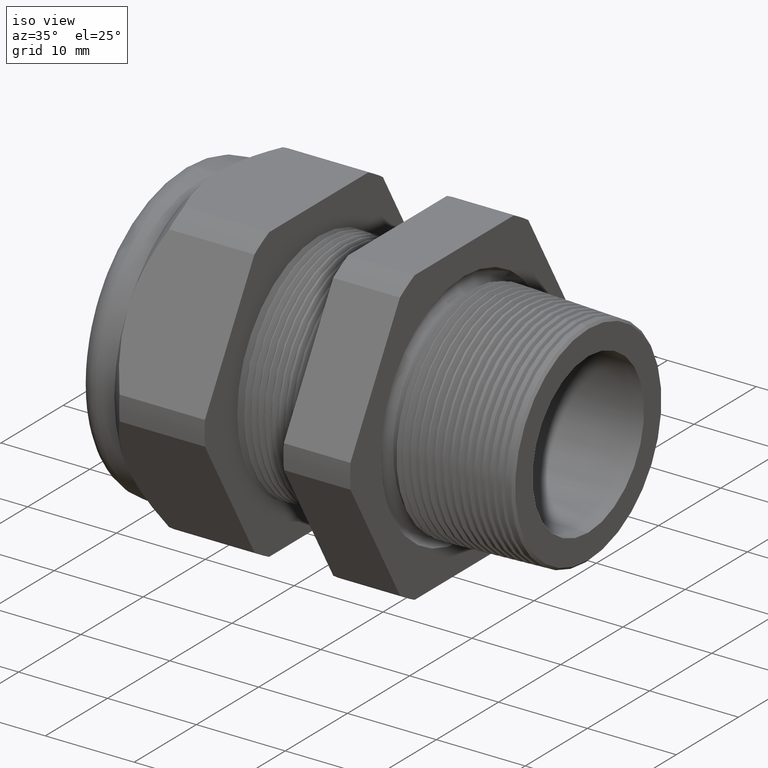
[diagram: clean part render]
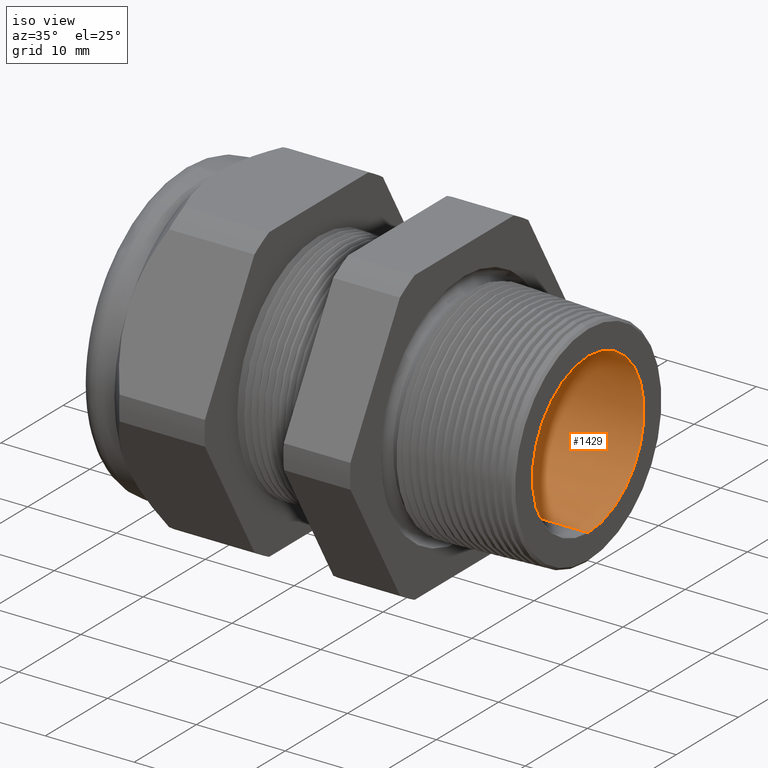
[diagram: same view with one face highlighted and labeled with its STEP entity id]
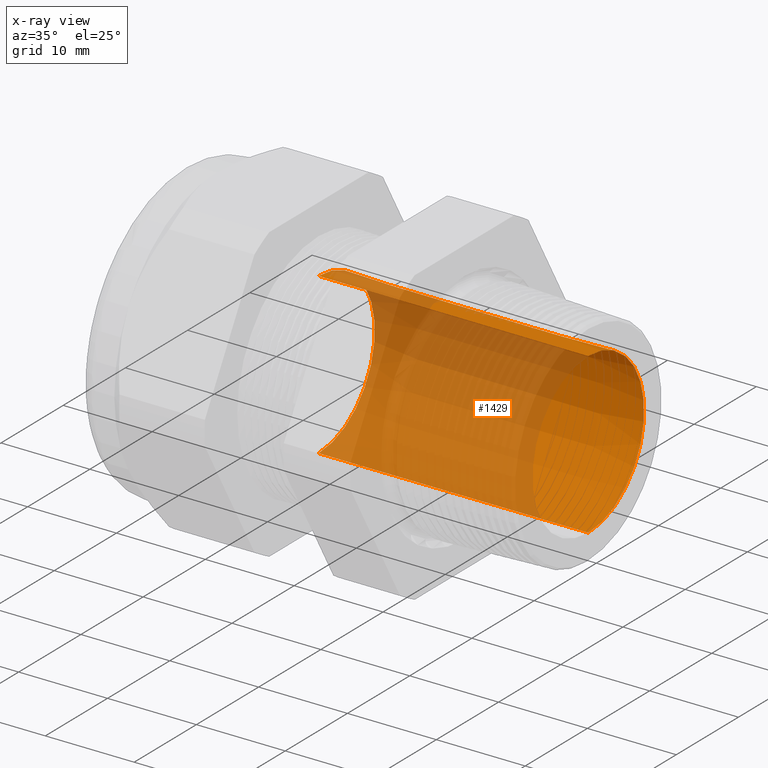
[diagram: x-ray of the same camera — body ghosted, the highlighted face saturated]
A machine part, iso view. The second image highlights one B-rep face of the part: STEP entity #1429.
The next image is the same camera in x-ray: the body ghosted, the highlighted face saturated — about 67% of this face is hidden behind the body in this view.
In plain terms, the highlighted conical surface has half-angle 0.082 deg.
Its self-contained STEP definition (entity closure, byte-faithful):
#786 = VERTEX_POINT ( 'NONE', #3634 ) ;
#841 = EDGE_CURVE ( 'NONE', #861, #786, #3789, .T. ) ;
#861 = VERTEX_POINT ( 'NONE', #3805 ) ;
#862 = VERTEX_POINT ( 'NONE', #3804 ) ;
#864 = EDGE_CURVE ( 'NONE', #862, #865, #3803, .T. ) ;
#865 = VERTEX_POINT ( 'NONE', #3799 ) ;
#1428 = EDGE_CURVE ( 'NONE', #865, #786, #4922, .T. ) ;
#1429 = ADVANCED_FACE ( 'NONE', ( #4915 ), #4914, .F. ) ;
#1430 = EDGE_LOOP ( 'NONE', ( #1485, #1486, #1488, #1489 ) ) ;
#1485 = ORIENTED_EDGE ( 'NONE', *, *, #864, .F. ) ;
#1486 = ORIENTED_EDGE ( 'NONE', *, *, #1487, .T. ) ;
#1487 = EDGE_CURVE ( 'NONE', #862, #861, #5070, .T. ) ;
#1488 = ORIENTED_EDGE ( 'NONE', *, *, #841, .T. ) ;
#1489 = ORIENTED_EDGE ( 'NONE', *, *, #1428, .F. ) ;
#3634 = CARTESIAN_POINT ( 'NONE',  ( -0.9546456692913386500, 4.347496136973103500E-017, 0.3549999999999999800 ) ) ;
#3786 = DIRECTION ( 'NONE',  ( -0.9999989660247511300, 0.0000000000000000000, 0.001438036657626116700 ) ) ;
#3787 = VECTOR ( 'NONE', #3786, 39.37007874015748100 ) ;
#3788 = CARTESIAN_POINT ( 'NONE',  ( -0.9546456692913386500, 0.0000000000000000000, 0.3549999999999999800 ) ) ;
#3789 = LINE ( 'NONE', #3788, #3787 ) ;
#3799 = CARTESIAN_POINT ( 'NONE',  ( -0.9546456692913386500, 0.0000000000000000000, -0.3549999999999999800 ) ) ;
#3800 = DIRECTION ( 'NONE',  ( -0.9999989660247511300, 1.761086989818382100E-019, -0.001438036657626116700 ) ) ;
#3801 = VECTOR ( 'NONE', #3800, 39.37007874015748100 ) ;
#3802 = CARTESIAN_POINT ( 'NONE',  ( -0.9546456692913386500, 4.347496136973103500E-017, -0.3549999999999999800 ) ) ;
#3803 = LINE ( 'NONE', #3802, #3801 ) ;
#3804 = CARTESIAN_POINT ( 'NONE',  ( 0.2400000000000001000, 4.336976751368160400E-017, -0.3532820539583710300 ) ) ;
#3805 = CARTESIAN_POINT ( 'NONE',  ( 0.2400000000000001000, 0.0000000000000000000, 0.3532820539583710300 ) ) ;
#4909 = DIRECTION ( 'NONE',  ( 0.0000000000000000000, 0.0000000000000000000, 1.000000000000000000 ) ) ;
#4910 = DIRECTION ( 'NONE',  ( -1.000000000000000000, 0.0000000000000000000, 0.0000000000000000000 ) ) ;
#4911 = CARTESIAN_POINT ( 'NONE',  ( -0.9546456692913386500, 0.0000000000000000000, 0.0000000000000000000 ) ) ;
#4912 = AXIS2_PLACEMENT_3D ( 'NONE', #4911, #4910, #4909 ) ;
#4914 = CONICAL_SURFACE ( 'NONE', #4912, 0.3549999999999999800, 0.001438037153257758300 ) ;
#4915 = FACE_OUTER_BOUND ( 'NONE', #1430, .T. ) ;
#4916 = DIRECTION ( 'NONE',  ( 0.0000000000000000000, 0.0000000000000000000, -1.000000000000000000 ) ) ;
#4917 = DIRECTION ( 'NONE',  ( 1.000000000000000000, 0.0000000000000000000, 0.0000000000000000000 ) ) ;
#4918 = CARTESIAN_POINT ( 'NONE',  ( -0.9546456692913386500, 0.0000000000000000000, 0.0000000000000000000 ) ) ;
#4919 = AXIS2_PLACEMENT_3D ( 'NONE', #4918, #4917, #4916 ) ;
#4922 = CIRCLE ( 'NONE', #4919, 0.3549999999999999800 ) ;
#5005 = CARTESIAN_POINT ( 'NONE',  ( 0.2400000000000001000, 0.0000000000000000000, 0.0000000000000000000 ) ) ;
#5067 = DIRECTION ( 'NONE',  ( 0.0000000000000000000, 0.0000000000000000000, -1.000000000000000000 ) ) ;
#5068 = DIRECTION ( 'NONE',  ( 1.000000000000000000, 0.0000000000000000000, 0.0000000000000000000 ) ) ;
#5069 = AXIS2_PLACEMENT_3D ( 'NONE', #5005, #5068, #5067 ) ;
#5070 = CIRCLE ( 'NONE', #5069, 0.3532820539583710300 ) ;